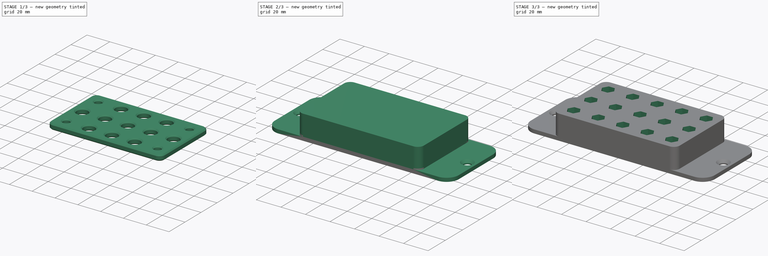
[diagram: build sequence overview — one tinted view per stage of 3, left to right]
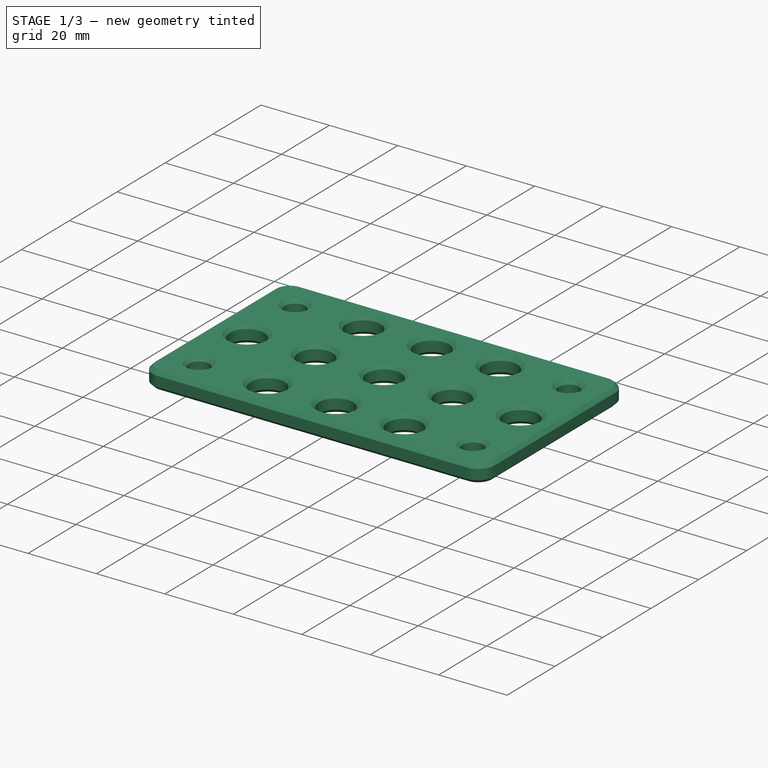
[diagram: stage 1 of 3 — iso view after this stage's code; geometry added in this stage tinted green]
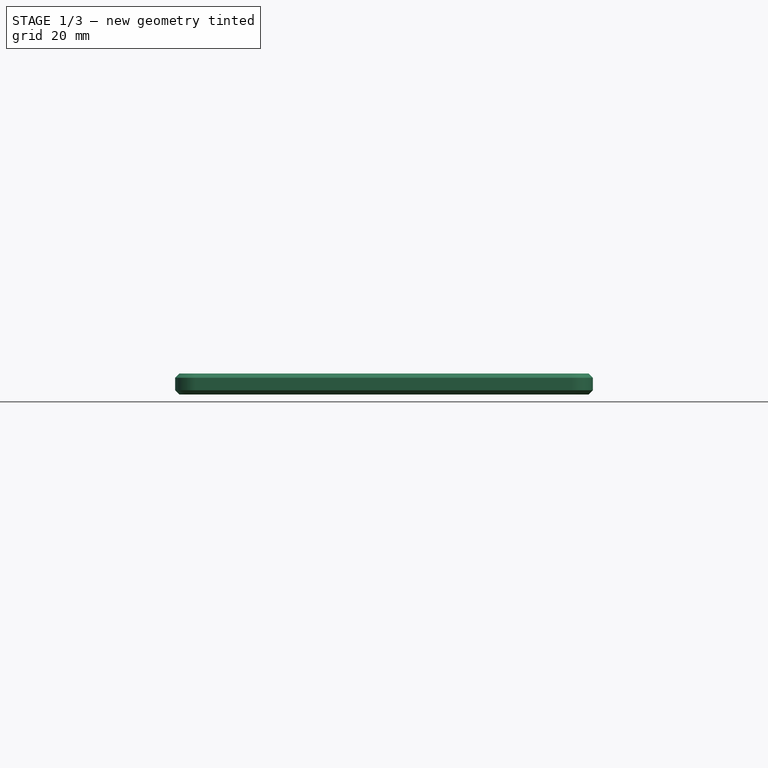
[diagram: stage 1 of 3 — front view after this stage's code; geometry added in this stage tinted green]
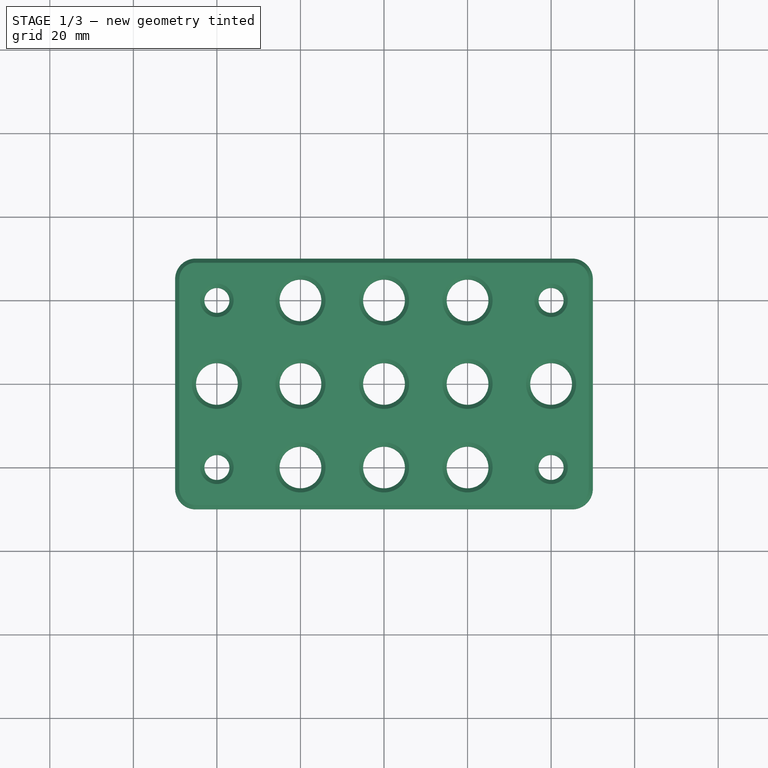
[diagram: stage 1 of 3 — top view after this stage's code; geometry added in this stage tinted green]
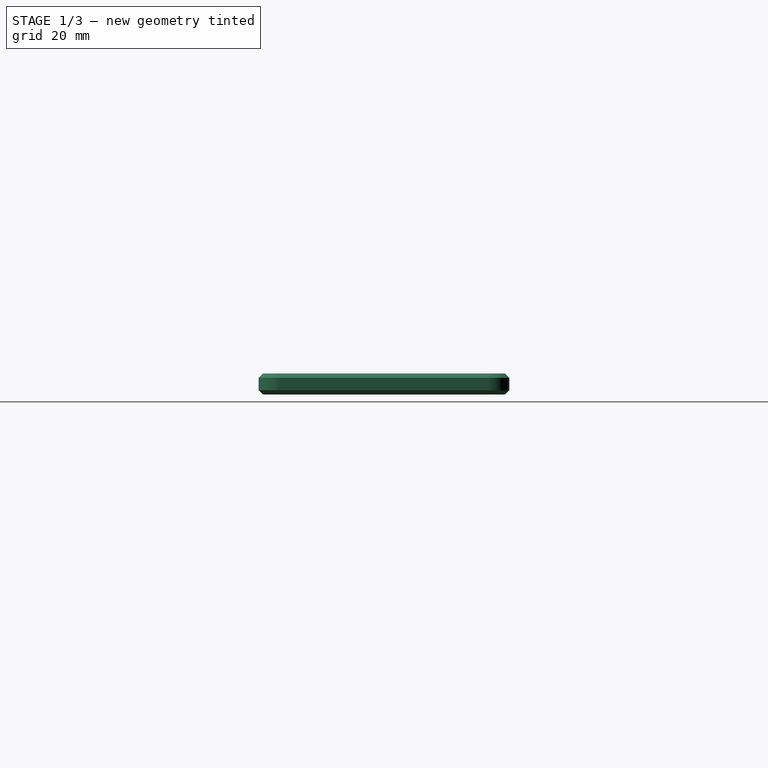
[diagram: stage 1 of 3 — right view after this stage's code; geometry added in this stage tinted green]
FCSTD DOCUMENT  (FreeCAD 0.21R33694 (Git))
Label: FM_mouthpiece_Tool
License: All rights reserved
LicenseURL: http://en.wikipedia.org/wiki/All_rights_reserved
objects: Sketcher::SketchObject×5, PartDesign::Pad×3, PartDesign::Chamfer×2, PartDesign::Pocket×2, PartDesign::Body×2
note: 21 computed .brp shape members not serialized (recipe doc carries the construction recipe); baked Part::Feature solids carry a one-line shape summary decoded from their .brp

FEATURE [PartDesign::Body] Body  label="base"
  Group = -> [Sketch,Pad,Chamfer,Sketch001,Pad001,Sketch002,Pocket,Sketch003,Pocket001]
  Origin = -> Origin
  Tip = -> Pocket001
FEATURE [Sketcher::SketchObject] Sketch004
  FullyConstrained = false
  MapMode = 5
  Support = -> [XY_Plane001]
  sketch-geometry (37):
    g0: Circle CenterX=-40 CenterY=20 CenterZ=0 NormalX=0 NormalY=0 NormalZ=1 AngleXU=0 Radius=3
    g1: Circle CenterX=-40 CenterY=0 CenterZ=0 NormalX=0 NormalY=0 NormalZ=1 AngleXU=0 Radius=5
    g2: Circle CenterX=-40 CenterY=-20 CenterZ=0 NormalX=0 NormalY=0 NormalZ=1 AngleXU=0 Radius=3
    g3: LineSegment StartX=-40 StartY=-10 StartZ=0 EndX=-40 EndY=-20 EndZ=0
    g4: LineSegment StartX=-40 StartY=-20 StartZ=0 EndX=-40 EndY=-30 EndZ=0
    g5: Circle CenterX=-20 CenterY=20 CenterZ=0 NormalX=0 NormalY=0 NormalZ=1 AngleXU=0 Radius=5
    g6: Circle CenterX=-20 CenterY=0 CenterZ=0 NormalX=0 NormalY=0 NormalZ=1 AngleXU=0 Radius=5
    g7: Circle CenterX=-20 CenterY=-20 CenterZ=0 NormalX=0 NormalY=0 NormalZ=1 AngleXU=0 Radius=5
    g8: LineSegment StartX=-20 StartY=-10 StartZ=0 EndX=-20 EndY=-20 EndZ=0
    g9: LineSegment StartX=-20 StartY=-20 StartZ=0 EndX=-20 EndY=-30 EndZ=0
    g10: LineSegment StartX=-40 StartY=20 StartZ=0 EndX=-20 EndY=20 EndZ=0
    g11: Circle CenterX=0 CenterY=20 CenterZ=0 NormalX=0 NormalY=0 NormalZ=1 AngleXU=0 Radius=5
    g12: Circle CenterX=0 CenterY=0 CenterZ=0 NormalX=0 NormalY=0 NormalZ=1 AngleXU=0 Radius=5
    g13: Circle CenterX=0 CenterY=-20 CenterZ=0 NormalX=0 NormalY=0 NormalZ=1 AngleXU=0 Radius=5
    g14: LineSegment StartX=0 StartY=-10 StartZ=0 EndX=0 EndY=-20 EndZ=0
    g15: LineSegment StartX=0 StartY=-20 StartZ=0 EndX=0 EndY=-30 EndZ=0
    g16: LineSegment StartX=-20 StartY=20 StartZ=0 EndX=0 EndY=20 EndZ=0
    g17: Circle CenterX=20 CenterY=20 CenterZ=0 NormalX=0 NormalY=0 NormalZ=1 AngleXU=0 Radius=5
    g18: Circle CenterX=20 CenterY=0 CenterZ=0 NormalX=0 NormalY=0 NormalZ=1 AngleXU=0 Radius=5
    g19: Circle CenterX=20 CenterY=-20 CenterZ=0 NormalX=0 NormalY=0 NormalZ=1 AngleXU=0 Radius=5
    g20: LineSegment StartX=20 StartY=-10 StartZ=0 EndX=20 EndY=-20 EndZ=0
    g21: LineSegment StartX=20 StartY=-20 StartZ=0 EndX=20 EndY=-30 EndZ=0
    g22: LineSegment StartX=0 StartY=20 StartZ=0 EndX=20 EndY=20 EndZ=0
    g23: Circle CenterX=40 CenterY=20 CenterZ=0 NormalX=0 NormalY=0 NormalZ=1 AngleXU=0 Radius=3
    g24: Circle CenterX=40 CenterY=0 CenterZ=0 NormalX=0 NormalY=0 NormalZ=1 AngleXU=0 Radius=5
    g25: Circle CenterX=40 CenterY=-20 CenterZ=0 NormalX=0 NormalY=0 NormalZ=1 AngleXU=0 Radius=3
    g26: LineSegment StartX=40 StartY=-10 StartZ=0 EndX=40 EndY=-20 EndZ=0
    g27: LineSegment StartX=40 StartY=-20 StartZ=0 EndX=40 EndY=-30 EndZ=0
    g28: LineSegment StartX=20 StartY=20 StartZ=0 EndX=40 EndY=20 EndZ=0
    g29: LineSegment StartX=-45.0989 StartY=30 StartZ=0 EndX=45.044 EndY=30 EndZ=0
    g30: LineSegment StartX=50 StartY=25.044 StartZ=0 EndX=50 EndY=-25.0419 EndZ=0
    g31: LineSegment StartX=45.0419 StartY=-30 StartZ=0 EndX=-45.086 EndY=-30 EndZ=0
    g32: LineSegment StartX=-50 StartY=-25.086 StartZ=0 EndX=-50 EndY=25.0989 EndZ=0
    g33: ArcOfCircle CenterX=45.0419 CenterY=-25.0419 CenterZ=0 NormalX=0 NormalY=0 NormalZ=1 AngleXU=0 Radius=4.95815 StartAngle=4.71239 EndAngle=6.28319
    g34: ArcOfCircle CenterX=-45.086 CenterY=-25.086 CenterZ=0 NormalX=0 NormalY=0 NormalZ=1 AngleXU=0 Radius=4.91403 StartAngle=3.14159 EndAngle=4.71239
    g35: ArcOfCircle CenterX=-45.0989 CenterY=25.0989 CenterZ=0 NormalX=0 NormalY=0 NormalZ=1 AngleXU=0 Radius=4.90112 StartAngle=1.5708 EndAngle=3.14159
    g36: ArcOfCircle CenterX=45.044 CenterY=25.044 CenterZ=0 NormalX=0 NormalY=0 NormalZ=1 AngleXU=0 Radius=4.95602 StartAngle=0 EndAngle=1.5708
  constraints (58):
    c: Coincident(g2,g3)
    c: Coincident(g2,g4)
    c: Equal(g3,g4)
    c: Coincident(g7,g8)
    c: Coincident(g7,g9)
    c: Equal(g8,g9)
    c: Coincident(g0,g10)
    c: Coincident(g5,g10)
    c: Distance(g10) = 20
    c: Angle(g10) = 0
    c: Coincident(g13,g14)
    c: Coincident(g13,g15)
    c: Equal(g14,g15)
    c: Coincident(g5,g16)
    c: Coincident(g11,g16)
    c: Equal(g10,g16)
    c: Parallel(g16,g10)
    c: Coincident(g19,g20)
    c: Coincident(g19,g21)
    c: Equal(g20,g21)
    c: Coincident(g11,g22)
    c: Coincident(g17,g22)
    c: Equal(g10,g22)
    c: Parallel(g22,g10)
    c: Coincident(g25,g26)
    c: Coincident(g25,g27)
    c: Equal(g26,g27)
    c: Coincident(g17,g28)
    c: Coincident(g23,g28)
    c: Equal(g10,g28)
    c: Parallel(g28,g10)
    c: Equal(g2,g0)
    c: Equal(g0,g25)
    c: Equal(g25,g23)
    c: Diameter(g23) = 6
    c: Equal(g5,g11)
    c: Equal(g11,g17)
    c: Equal(g17,g7)
    c: Equal(g7,g13)
    c: Equal(g13,g19)
    c: Equal(g19,g1)
    c: Equal(g1,g6)
    c: Equal(g6,g12)
    c: Equal(g12,g18)
    c: Equal(g18,g24)
    c: Diameter(g24) = 10
    c: Horizontal(g29)
    c: Horizontal(g31)
    c: Vertical(g30)
    c: Vertical(g32)
    c: Tangent(g30,g33) = 1.5708
    c: Tangent(g31,g33) = 1.5708
    c: Tangent(g31,g34) = 1.5708
    c: Tangent(g32,g34) = 1.5708
    c: Tangent(g29,g35) = 1.5708
    c: Tangent(g32,g35) = 1.5708
    c: Tangent(g30,g36) = 1.5708
    c: Tangent(g29,g36) = 1.5708
FEATURE [PartDesign::Pad] Pad002
  Direction = (0,0,1)
  Length = 5
  Length2 = 10
  Profile = -> Sketch004
  ReferenceAxis = -> Sketch004 [N_Axis]
  Type = 0
FEATURE [PartDesign::Chamfer] Chamfer001
  Angle = 45
  Base = -> Pad002 [Face25,Face24]
  BaseFeature = -> Pad002
  ChamferType = 0
  FlipDirection = false
  Size = 1
  Size2 = 1
  SupportTransform = false
  UseAllEdges = false
FEATURE [PartDesign::Body] Body001  label="cap"
  Group = -> [Sketch004,Pad002,Chamfer001]
  Origin = -> Origin001
  Tip = -> Chamfer001
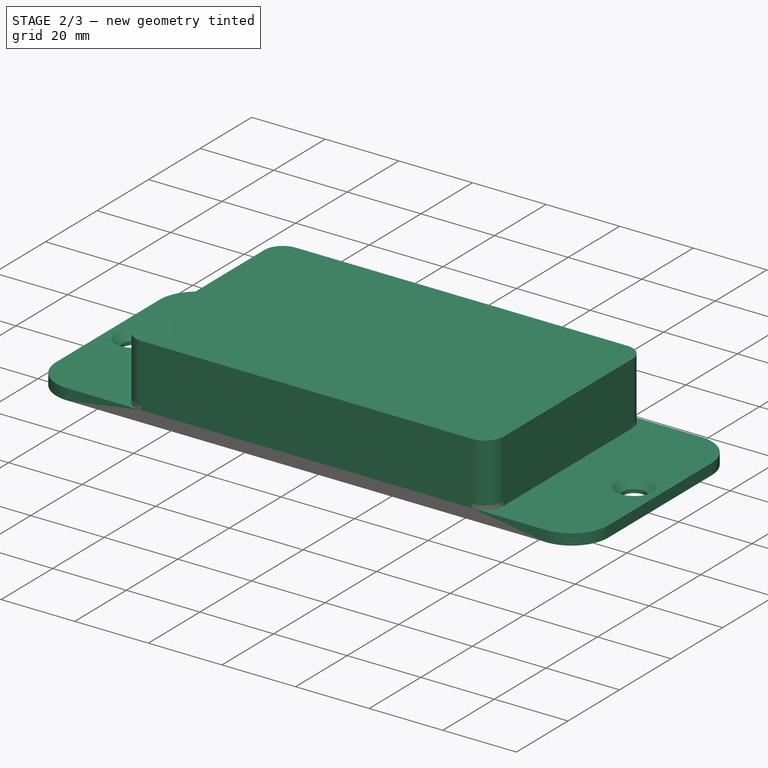
[diagram: stage 2 of 3 — iso view after this stage's code; geometry added in this stage tinted green]
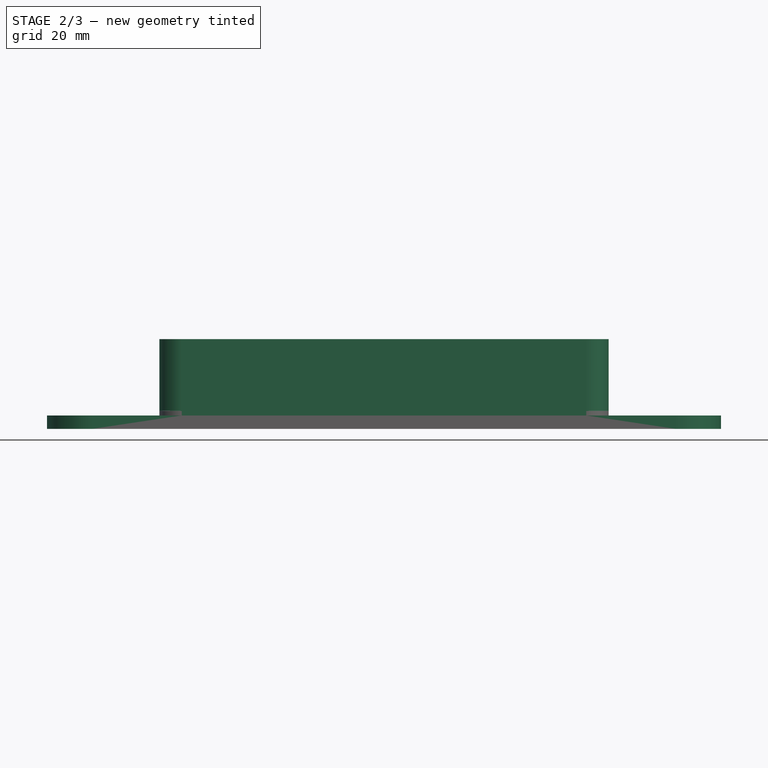
[diagram: stage 2 of 3 — front view after this stage's code; geometry added in this stage tinted green]
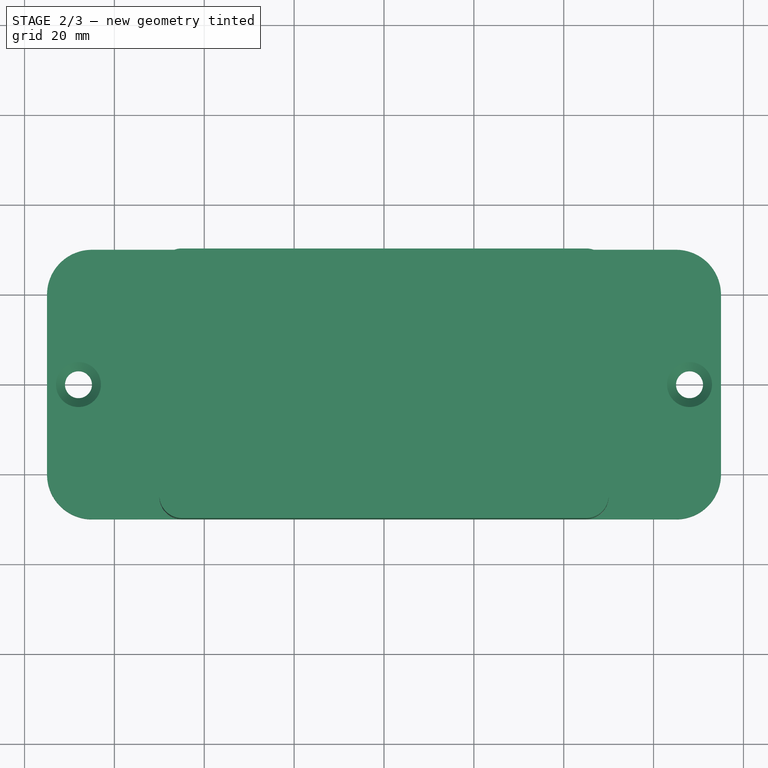
[diagram: stage 2 of 3 — top view after this stage's code; geometry added in this stage tinted green]
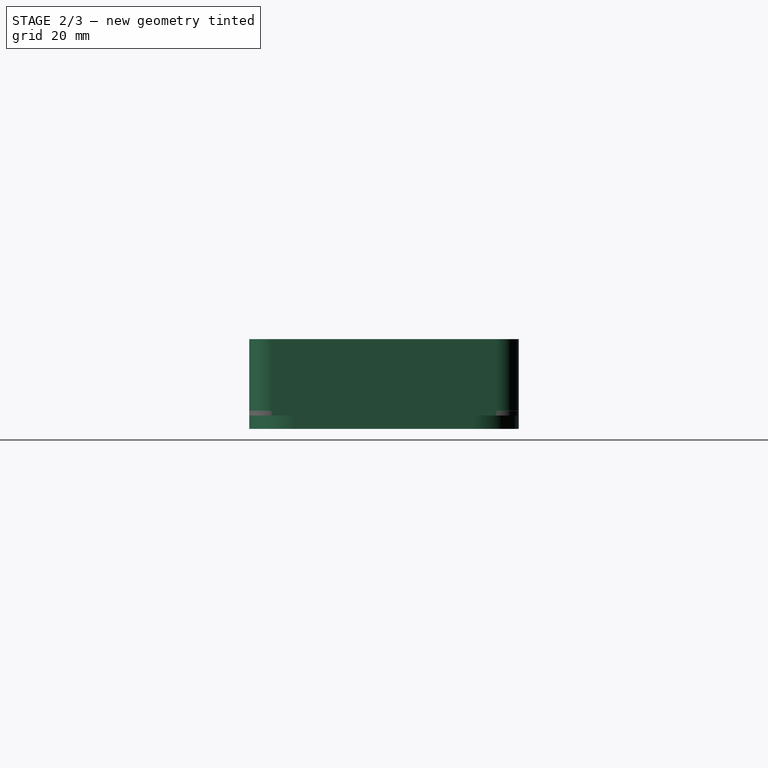
[diagram: stage 2 of 3 — right view after this stage's code; geometry added in this stage tinted green]
FEATURE [Sketcher::SketchObject] Sketch
  FullyConstrained = true
  MapMode = 5
  Support = -> [XY_Plane]
  sketch-geometry (14):
    g0: LineSegment StartX=-65 StartY=30 StartZ=0 EndX=65 EndY=30 EndZ=0
    g1: LineSegment StartX=75 StartY=20 StartZ=0 EndX=75 EndY=-20 EndZ=0
    g2: LineSegment StartX=65 StartY=-30 StartZ=0 EndX=-65 EndY=-30 EndZ=0
    g3: LineSegment StartX=-75 StartY=-20 StartZ=0 EndX=-75 EndY=20 EndZ=0
    g4: ArcOfCircle CenterX=-65 CenterY=20 CenterZ=0 NormalX=0 NormalY=0 NormalZ=1 AngleXU=0 Radius=10 StartAngle=1.5708 EndAngle=3.14159
    g5: GeomPoint X=-75 Y=30 Z=0
    g6: ArcOfCircle CenterX=-65 CenterY=-20 CenterZ=0 NormalX=0 NormalY=0 NormalZ=1 AngleXU=0 Radius=10 StartAngle=3.14159 EndAngle=4.71239
    g7: GeomPoint X=-75 Y=-30 Z=0
    g8: ArcOfCircle CenterX=65 CenterY=20 CenterZ=0 NormalX=0 NormalY=0 NormalZ=1 AngleXU=0 Radius=10 StartAngle=0 EndAngle=1.5708
    g9: GeomPoint X=75 Y=30 Z=0
    g10: ArcOfCircle CenterX=65 CenterY=-20 CenterZ=0 NormalX=0 NormalY=0 NormalZ=1 AngleXU=0 Radius=10 StartAngle=4.71239 EndAngle=6.28319
    g11: GeomPoint X=75 Y=-30 Z=0
    g12: Circle CenterX=-68 CenterY=0 CenterZ=0 NormalX=0 NormalY=0 NormalZ=1 AngleXU=0 Radius=3
    g13: Circle CenterX=68 CenterY=0 CenterZ=0 NormalX=0 NormalY=0 NormalZ=1 AngleXU=0 Radius=3
  constraints (31):
    c: Horizontal(g0)
    c: Vertical(g3)
    c: Symmetric(g11,g7,g-2)
    c: DistanceX(g7,g11) = 150
    c: DistanceY(g11,g9) = 60
    c: Symmetric(g11,g9,g-1)
    c: PointOnObject(g5,g0)
    c: PointOnObject(g5,g3)
    c: Tangent(g0,g4) = 1.5708
    c: Tangent(g3,g4) = 1.5708
    c: Radius(g4) = 10
    c: PointOnObject(g7,g3)
    c: PointOnObject(g7,g2)
    c: Tangent(g3,g6) = 1.5708
    c: Tangent(g2,g6) = 1.5708
    c: PointOnObject(g9,g0)
    c: PointOnObject(g9,g1)
    c: Tangent(g0,g8) = 1.5708
    c: Tangent(g1,g8) = 1.5708
    c: PointOnObject(g11,g1)
    c: PointOnObject(g11,g2)
    c: Tangent(g1,g10) = 1.5708
    c: Tangent(g2,g10) = 1.5708
    c: Radius(g8) = 10
    c: Radius(g10) = 10
    c: Radius(g6) = 10
    c: PointOnObject(g12,g-1)
    c: Radius(g12) = 3
    c: Radius(g13) = 3
    c: Symmetric(g13,g12,g-2)
    c: DistanceX(g12,g-1) = 68
FEATURE [PartDesign::Pad] Pad
  Direction = (1,1,1)
  Length = 3
  Length2 = 100
  Profile = -> Sketch
  Refine = true
  Type = 0
FEATURE [PartDesign::Chamfer] Chamfer
  Angle = 45
  Base = -> Pad [Edge30,Edge27]
  BaseFeature = -> Pad
  ChamferType = 0
  FlipDirection = false
  Refine = true
  Size = 2
  Size2 = 1
  SupportTransform = false
  UseAllEdges = false
FEATURE [Sketcher::SketchObject] Sketch001
  FullyConstrained = true
  MapMode = 5
  Support = -> [XY_Plane]
  sketch-geometry (12):
    g0: LineSegment StartX=-45 StartY=30 StartZ=0 EndX=45 EndY=30 EndZ=0
    g1: LineSegment StartX=50 StartY=25 StartZ=0 EndX=50 EndY=-25 EndZ=0
    g2: LineSegment StartX=45 StartY=-30 StartZ=0 EndX=-45 EndY=-30 EndZ=0
    g3: LineSegment StartX=-50 StartY=-25 StartZ=0 EndX=-50 EndY=25 EndZ=0
    g4: ArcOfCircle CenterX=-45 CenterY=25 CenterZ=0 NormalX=0 NormalY=0 NormalZ=1 AngleXU=0 Radius=5 StartAngle=1.5708 EndAngle=3.14159
    g5: GeomPoint X=-50 Y=30 Z=0
    g6: ArcOfCircle CenterX=45 CenterY=25 CenterZ=0 NormalX=0 NormalY=0 NormalZ=1 AngleXU=0 Radius=5 StartAngle=0 EndAngle=1.5708
    g7: GeomPoint X=50 Y=30 Z=0
    g8: ArcOfCircle CenterX=45 CenterY=-25 CenterZ=0 NormalX=0 NormalY=0 NormalZ=1 AngleXU=0 Radius=5 StartAngle=4.71239 EndAngle=6.28319
    g9: GeomPoint X=50 Y=-30 Z=0
    g10: ArcOfCircle CenterX=-45 CenterY=-25 CenterZ=0 NormalX=0 NormalY=0 NormalZ=1 AngleXU=0 Radius=5 StartAngle=3.14159 EndAngle=4.71239
    g11: GeomPoint X=-50 Y=-30 Z=0
  constraints (27):
    c: Horizontal(g0)
    c: Vertical(g3)
    c: Symmetric(g9,g7,g-1)
    c: DistanceY(g11,g5) = 60
    c: DistanceX(g5,g7) = 100
    c: Horizontal(g2)
    c: DistanceX(g11,g-1) = 50
    c: PointOnObject(g5,g0)
    c: PointOnObject(g5,g3)
    c: Tangent(g0,g4) = 1.5708
    c: Tangent(g3,g4) = 1.5708
    c: PointOnObject(g7,g0)
    c: PointOnObject(g7,g1)
    c: Tangent(g0,g6) = 1.5708
    c: Tangent(g1,g6) = 1.5708
    c: PointOnObject(g9,g1)
    c: PointOnObject(g9,g2)
    c: Tangent(g1,g8) = 1.5708
    c: Tangent(g2,g8) = 1.5708
    c: PointOnObject(g11,g2)
    c: PointOnObject(g11,g3)
    c: Tangent(g2,g10) = 1.5708
    c: Tangent(g3,g10) = 1.5708
    c: Radius(g10) = 5
    c: Radius(g4) = 5
    c: Radius(g6) = 5
    c: Radius(g8) = 5
FEATURE [PartDesign::Pad] Pad001
  BaseFeature = -> Chamfer
  Direction = (1,1,1)
  Length = 20
  Length2 = 100
  Profile = -> Sketch001
  Refine = true
  Type = 0
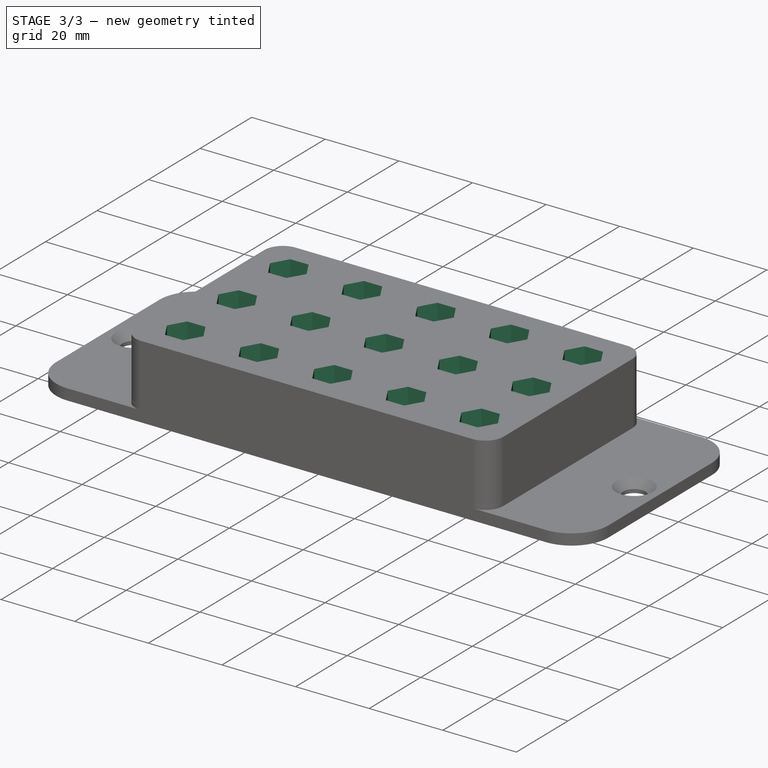
[diagram: stage 3 of 3 — iso view after this stage's code; geometry added in this stage tinted green]
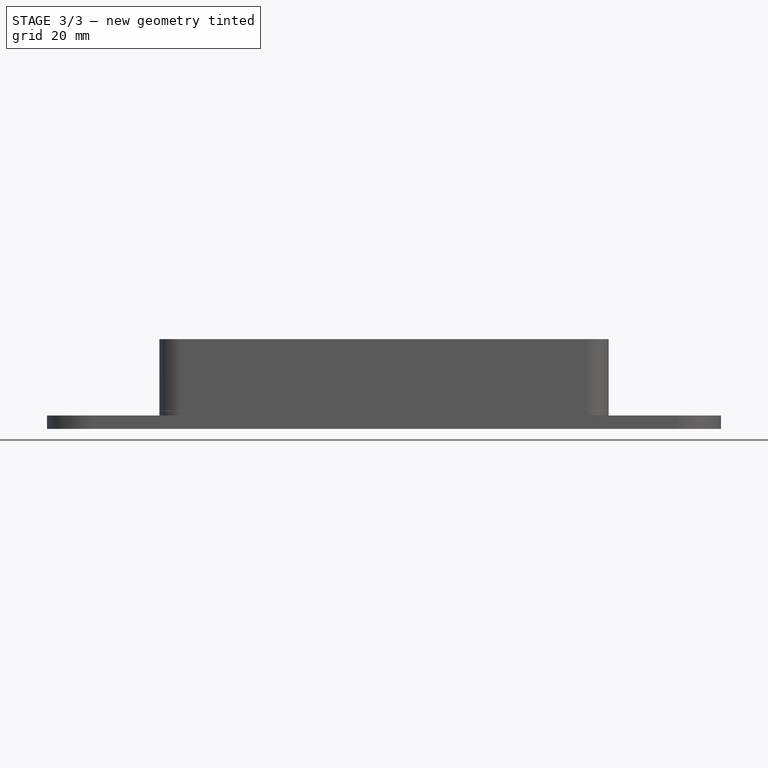
[diagram: stage 3 of 3 — front view after this stage's code; geometry added in this stage tinted green]
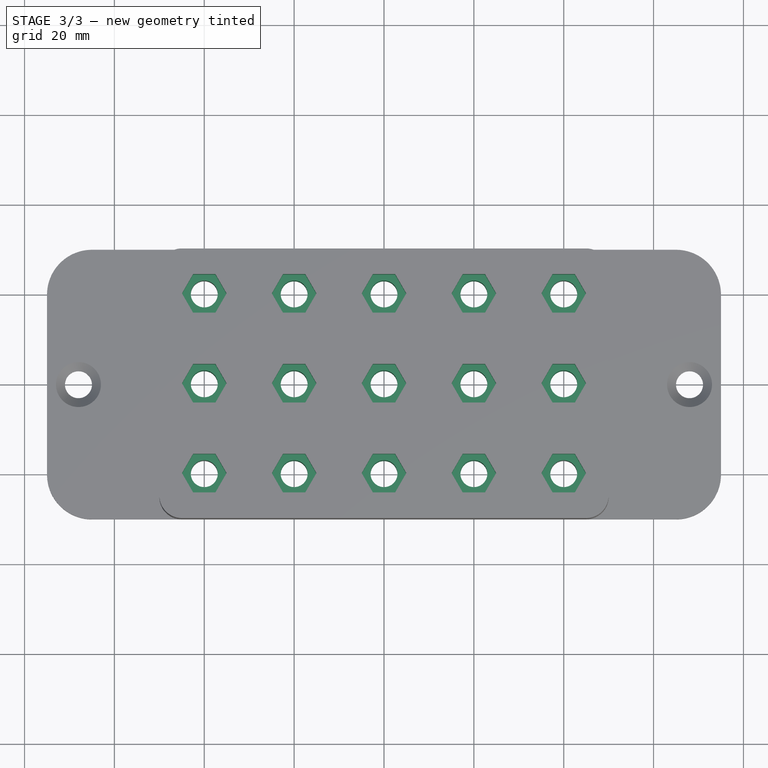
[diagram: stage 3 of 3 — top view after this stage's code; geometry added in this stage tinted green]
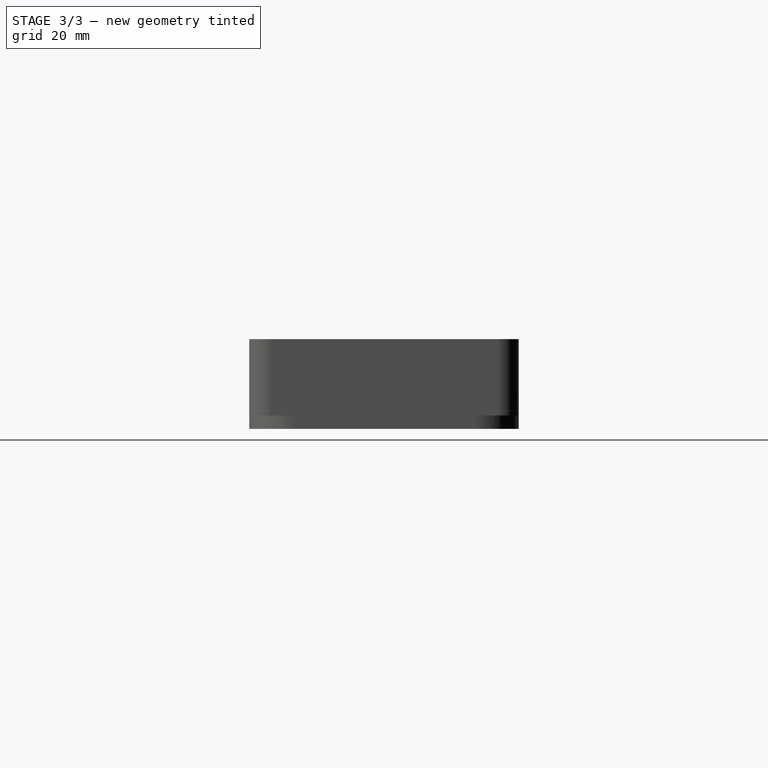
[diagram: stage 3 of 3 — right view after this stage's code; geometry added in this stage tinted green]
FEATURE [Sketcher::SketchObject] Sketch002
  FullyConstrained = false
  MapMode = 5
  Placement = pos=(0,0,20) rot=(0,0,1;0rad)
  Support = -> [Pad001]
  sketch-geometry (109):
    g0: LineSegment StartX=-37.5174 StartY=15.7 StartZ=0 EndX=-35.0348 EndY=20 EndZ=0
    g1: LineSegment StartX=-35.0348 StartY=20 StartZ=0 EndX=-37.5174 EndY=24.3 EndZ=0
    g2: LineSegment StartX=-37.5174 StartY=24.3 StartZ=0 EndX=-42.4826 EndY=24.3 EndZ=0
    g3: LineSegment StartX=-42.4826 StartY=24.3 StartZ=0 EndX=-44.9652 EndY=20 EndZ=0
    g4: LineSegment StartX=-44.9652 StartY=20 StartZ=0 EndX=-42.4826 EndY=15.7 EndZ=0
    g5: LineSegment StartX=-42.4826 StartY=15.7 StartZ=0 EndX=-37.5174 EndY=15.7 EndZ=0
    g6: Circle CenterX=-40 CenterY=20 CenterZ=0 NormalX=0 NormalY=0 NormalZ=1 AngleXU=0 Radius=4.96521
    g7: LineSegment StartX=-37.5174 StartY=-4.3 StartZ=0 EndX=-35.0348 EndY=0 EndZ=0
    g8: LineSegment StartX=-35.0348 StartY=2e-16 StartZ=0 EndX=-37.5174 EndY=4.3 EndZ=0
    g9: LineSegment StartX=-37.5174 StartY=4.3 StartZ=0 EndX=-42.4826 EndY=4.3 EndZ=0
    g10: LineSegment StartX=-42.4826 StartY=4.3 StartZ=0 EndX=-44.9652 EndY=0 EndZ=0
    g11: LineSegment StartX=-44.9652 StartY=0 StartZ=0 EndX=-42.4826 EndY=-4.3 EndZ=0
    g12: LineSegment StartX=-42.4826 StartY=-4.3 StartZ=0 EndX=-37.5174 EndY=-4.3 EndZ=0
    g13: Circle CenterX=-40 CenterY=0 CenterZ=0 NormalX=0 NormalY=0 NormalZ=1 AngleXU=0 Radius=4.96521
    g14: LineSegment StartX=-37.5174 StartY=-24.3 StartZ=0 EndX=-35.0348 EndY=-20 EndZ=0
    g15: LineSegment StartX=-35.0348 StartY=-20 StartZ=0 EndX=-37.5174 EndY=-15.7 EndZ=0
    g16: LineSegment StartX=-37.5174 StartY=-15.7 StartZ=0 EndX=-42.4826 EndY=-15.7 EndZ=0
    g17: LineSegment StartX=-42.4826 StartY=-15.7 StartZ=0 EndX=-44.9652 EndY=-20 EndZ=0
    g18: LineSegment StartX=-44.9652 StartY=-20 StartZ=0 EndX=-42.4826 EndY=-24.3 EndZ=0
    g19: LineSegment StartX=-42.4826 StartY=-24.3 StartZ=0 EndX=-37.5174 EndY=-24.3 EndZ=0
    g20: Circle CenterX=-40 CenterY=-20 CenterZ=0 NormalX=0 NormalY=0 NormalZ=1 AngleXU=0 Radius=4.96521
    g21: LineSegment StartX=-17.5174 StartY=15.7 StartZ=0 EndX=-15.0348 EndY=20 EndZ=0
    g22: LineSegment StartX=-15.0348 StartY=20 StartZ=0 EndX=-17.5174 EndY=24.3 EndZ=0
    g23: LineSegment StartX=-17.5174 StartY=24.3 StartZ=0 EndX=-22.4826 EndY=24.3 EndZ=0
    g24: LineSegment StartX=-22.4826 StartY=24.3 StartZ=0 EndX=-24.9652 EndY=20 EndZ=0
    g25: LineSegment StartX=-24.9652 StartY=20 StartZ=0 EndX=-22.4826 EndY=15.7 EndZ=0
    g26: LineSegment StartX=-22.4826 StartY=15.7 StartZ=0 EndX=-17.5174 EndY=15.7 EndZ=0
    g27: Circle CenterX=-20 CenterY=20 CenterZ=0 NormalX=0 NormalY=0 NormalZ=1 AngleXU=0 Radius=4.96521
    g28: LineSegment StartX=-17.5174 StartY=-4.3 StartZ=0 EndX=-15.0348 EndY=0 EndZ=0
    g29: LineSegment StartX=-15.0348 StartY=0 StartZ=0 EndX=-17.5174 EndY=4.3 EndZ=0
    g30: LineSegment StartX=-17.5174 StartY=4.3 StartZ=0 EndX=-22.4826 EndY=4.3 EndZ=0
    g31: LineSegment StartX=-22.4826 StartY=4.3 StartZ=0 EndX=-24.9652 EndY=0 EndZ=0
    g32: LineSegment StartX=-24.9652 StartY=0 StartZ=0 EndX=-22.4826 EndY=-4.3 EndZ=0
    g33: LineSegment StartX=-22.4826 StartY=-4.3 StartZ=0 EndX=-17.5174 EndY=-4.3 EndZ=0
    g34: Circle CenterX=-20 CenterY=0 CenterZ=0 NormalX=0 NormalY=0 NormalZ=1 AngleXU=0 Radius=4.96521
    g35: LineSegment StartX=-17.5174 StartY=-24.3 StartZ=0 EndX=-15.0348 EndY=-20 EndZ=0
    g36: LineSegment StartX=-15.0348 StartY=-20 StartZ=0 EndX=-17.5174 EndY=-15.7 EndZ=0
    g37: LineSegment StartX=-17.5174 StartY=-15.7 StartZ=0 EndX=-22.4826 EndY=-15.7 EndZ=0
    g38: LineSegment StartX=-22.4826 StartY=-15.7 StartZ=0 EndX=-24.9652 EndY=-20 EndZ=0
    g39: LineSegment StartX=-24.9652 StartY=-20 StartZ=0 EndX=-22.4826 EndY=-24.3 EndZ=0
    g40: LineSegment StartX=-22.4826 StartY=-24.3 StartZ=0 EndX=-17.5174 EndY=-24.3 EndZ=0
    g41: Circle CenterX=-20 CenterY=-20 CenterZ=0 NormalX=0 NormalY=0 NormalZ=1 AngleXU=0 Radius=4.96521
    g42: LineSegment StartX=-37.5174 StartY=15.7 StartZ=0 EndX=-17.5174 EndY=15.7 EndZ=0
    g43: LineSegment StartX=2.48261 StartY=15.7 StartZ=0 EndX=4.96521 EndY=20 EndZ=0
    g44: LineSegment StartX=4.96521 StartY=20 StartZ=0 EndX=2.48261 EndY=24.3 EndZ=0
    g45: LineSegment StartX=2.48261 StartY=24.3 StartZ=0 EndX=-2.48261 EndY=24.3 EndZ=0
    g46: LineSegment StartX=-2.48261 StartY=24.3 StartZ=0 EndX=-4.96521 EndY=20 EndZ=0
    g47: LineSegment StartX=-4.96521 StartY=20 StartZ=0 EndX=-2.48261 EndY=15.7 EndZ=0
    g48: LineSegment StartX=-2.48261 StartY=15.7 StartZ=0 EndX=2.48261 EndY=15.7 EndZ=0
    g49: Circle CenterX=0 CenterY=20 CenterZ=0 NormalX=0 NormalY=0 NormalZ=1 AngleXU=0 Radius=4.96521
    g50: LineSegment StartX=2.48261 StartY=-4.3 StartZ=0 EndX=4.96521 EndY=0 EndZ=0
    g51: LineSegment StartX=4.96521 StartY=0 StartZ=0 EndX=2.48261 EndY=4.3 EndZ=0
    g52: LineSegment StartX=2.48261 StartY=4.3 StartZ=0 EndX=-2.48261 EndY=4.3 EndZ=0
    g53: LineSegment StartX=-2.48261 StartY=4.3 StartZ=0 EndX=-4.96521 EndY=0 EndZ=0
    g54: LineSegment StartX=-4.96521 StartY=0 StartZ=0 EndX=-2.48261 EndY=-4.3 EndZ=0
    g55: LineSegment StartX=-2.48261 StartY=-4.3 StartZ=0 EndX=2.48261 EndY=-4.3 EndZ=0
    g56: Circle CenterX=0 CenterY=0 CenterZ=0 NormalX=0 NormalY=0 NormalZ=1 AngleXU=0 Radius=4.96521
    g57: LineSegment StartX=2.48261 StartY=-24.3 StartZ=0 EndX=4.96521 EndY=-20 EndZ=0
    g58: LineSegment StartX=4.96521 StartY=-20 StartZ=0 EndX=2.48261 EndY=-15.7 EndZ=0
    g59: LineSegment StartX=2.48261 StartY=-15.7 StartZ=0 EndX=-2.48261 EndY=-15.7 EndZ=0
    g60: LineSegment StartX=-2.48261 StartY=-15.7 StartZ=0 EndX=-4.96521 EndY=-20 EndZ=0
    g61: LineSegment StartX=-4.96521 StartY=-20 StartZ=0 EndX=-2.48261 EndY=-24.3 EndZ=0
    g62: LineSegment StartX=-2.48261 StartY=-24.3 StartZ=0 EndX=2.48261 EndY=-24.3 EndZ=0
    g63: Circle CenterX=0 CenterY=-20 CenterZ=0 NormalX=0 NormalY=0 NormalZ=1 AngleXU=0 Radius=4.96521
    g64: LineSegment StartX=-17.5174 StartY=15.7 StartZ=0 EndX=2.48261 EndY=15.7 EndZ=0
    g65: LineSegment StartX=22.4826 StartY=15.7 StartZ=0 EndX=24.9652 EndY=20 EndZ=0
    g66: LineSegment StartX=24.9652 StartY=20 StartZ=0 EndX=22.4826 EndY=24.3 EndZ=0
    g67: LineSegment StartX=22.4826 StartY=24.3 StartZ=0 EndX=17.5174 EndY=24.3 EndZ=0
    g68: LineSegment StartX=17.5174 StartY=24.3 StartZ=0 EndX=15.0348 EndY=20 EndZ=0
    g69: LineSegment StartX=15.0348 StartY=20 StartZ=0 EndX=17.5174 EndY=15.7 EndZ=0
    g70: LineSegment StartX=17.5174 StartY=15.7 StartZ=0 EndX=22.4826 EndY=15.7 EndZ=0
    g71: Circle CenterX=20 CenterY=20 CenterZ=0 NormalX=0 NormalY=0 NormalZ=1 AngleXU=0 Radius=4.96521
    g72: LineSegment StartX=22.4826 StartY=-4.3 StartZ=0 EndX=24.9652 EndY=0 EndZ=0
    g73: LineSegment StartX=24.9652 StartY=0 StartZ=0 EndX=22.4826 EndY=4.3 EndZ=0
    g74: LineSegment StartX=22.4826 StartY=4.3 StartZ=0 EndX=17.5174 EndY=4.3 EndZ=0
    g75: LineSegment StartX=17.5174 StartY=4.3 StartZ=0 EndX=15.0348 EndY=0 EndZ=0
    g76: LineSegment StartX=15.0348 StartY=0 StartZ=0 EndX=17.5174 EndY=-4.3 EndZ=0
    g77: LineSegment StartX=17.5174 StartY=-4.3 StartZ=0 EndX=22.4826 EndY=-4.3 EndZ=0
    g78: Circle CenterX=20 CenterY=0 CenterZ=0 NormalX=0 NormalY=0 NormalZ=1 AngleXU=0 Radius=4.96521
    g79: LineSegment StartX=22.4826 StartY=-24.3 StartZ=0 EndX=24.9652 EndY=-20 EndZ=0
    g80: LineSegment StartX=24.9652 StartY=-20 StartZ=0 EndX=22.4826 EndY=-15.7 EndZ=0
    g81: LineSegment StartX=22.4826 StartY=-15.7 StartZ=0 EndX=17.5174 EndY=-15.7 EndZ=0
    g82: LineSegment StartX=17.5174 StartY=-15.7 StartZ=0 EndX=15.0348 EndY=-20 EndZ=0
    g83: LineSegment StartX=15.0348 StartY=-20 StartZ=0 EndX=17.5174 EndY=-24.3 EndZ=0
    g84: LineSegment StartX=17.5174 StartY=-24.3 StartZ=0 EndX=22.4826 EndY=-24.3 EndZ=0
    g85: Circle CenterX=20 CenterY=-20 CenterZ=0 NormalX=0 NormalY=0 NormalZ=1 AngleXU=0 Radius=4.96521
    g86: LineSegment StartX=2.48261 StartY=15.7 StartZ=0 EndX=22.4826 EndY=15.7 EndZ=0
    g87: LineSegment StartX=42.4826 StartY=15.7 StartZ=0 EndX=44.9652 EndY=20 EndZ=0
    g88: LineSegment StartX=44.9652 StartY=20 StartZ=0 EndX=42.4826 EndY=24.3 EndZ=0
    g89: LineSegment StartX=42.4826 StartY=24.3 StartZ=0 EndX=37.5174 EndY=24.3 EndZ=0
    g90: LineSegment StartX=37.5174 StartY=24.3 StartZ=0 EndX=35.0348 EndY=20 EndZ=0
    g91: LineSegment StartX=35.0348 StartY=20 StartZ=0 EndX=37.5174 EndY=15.7 EndZ=0
    g92: LineSegment StartX=37.5174 StartY=15.7 StartZ=0 EndX=42.4826 EndY=15.7 EndZ=0
    g93: Circle CenterX=40 CenterY=20 CenterZ=0 NormalX=0 NormalY=0 NormalZ=1 AngleXU=0 Radius=4.96521
    g94: LineSegment StartX=42.4826 StartY=-4.3 StartZ=0 EndX=44.9652 EndY=0 EndZ=0
    g95: LineSegment StartX=44.9652 StartY=2e-16 StartZ=0 EndX=42.4826 EndY=4.3 EndZ=0
    g96: LineSegment StartX=42.4826 StartY=4.3 StartZ=0 EndX=37.5174 EndY=4.3 EndZ=0
    g97: LineSegment StartX=37.5174 StartY=4.3 StartZ=0 EndX=35.0348 EndY=0 EndZ=0
    g98: LineSegment StartX=35.0348 StartY=0 StartZ=0 EndX=37.5174 EndY=-4.3 EndZ=0
    g99: LineSegment StartX=37.5174 StartY=-4.3 StartZ=0 EndX=42.4826 EndY=-4.3 EndZ=0
    g100: Circle CenterX=40 CenterY=0 CenterZ=0 NormalX=0 NormalY=0 NormalZ=1 AngleXU=0 Radius=4.96521
    g101: LineSegment StartX=42.4826 StartY=-24.3 StartZ=0 EndX=44.9652 EndY=-20 EndZ=0
    g102: LineSegment StartX=44.9652 StartY=-20 StartZ=0 EndX=42.4826 EndY=-15.7 EndZ=0
    g103: LineSegment StartX=42.4826 StartY=-15.7 StartZ=0 EndX=37.5174 EndY=-15.7 EndZ=0
    g104: LineSegment StartX=37.5174 StartY=-15.7 StartZ=0 EndX=35.0348 EndY=-20 EndZ=0
    g105: LineSegment StartX=35.0348 StartY=-20 StartZ=0 EndX=37.5174 EndY=-24.3 EndZ=0
    g106: LineSegment StartX=37.5174 StartY=-24.3 StartZ=0 EndX=42.4826 EndY=-24.3 EndZ=0
    g107: Circle CenterX=40 CenterY=-20 CenterZ=0 NormalX=0 NormalY=0 NormalZ=1 AngleXU=0 Radius=4.96521
    g108: LineSegment StartX=22.4826 StartY=15.7 StartZ=0 EndX=42.4826 EndY=15.7 EndZ=0
  constraints (254):
    c: Coincident(g0,g1)
    c: Coincident(g1,g2)
    c: Coincident(g2,g3)
    c: Coincident(g3,g4)
    c: Coincident(g4,g5)
    c: Coincident(g5,g0)
    c: Equal(g0, g1-g5) x5
    c: PointOnObject(g0,g6)
    c: PointOnObject(g1,g6)
    c: PointOnObject(g2,g6)
    c: PointOnObject(g3,g6)
    c: PointOnObject(g4,g6)
    c: PointOnObject(g5,g6)
    c: Horizontal(g5)
    c: DistanceY(g0,g1) = 8.6
    c: Coincident(g7,g8)
    c: Coincident(g8,g9)
    c: Coincident(g9,g10)
    c: Coincident(g10,g11)
    c: Coincident(g11,g12)
    c: Coincident(g12,g7)
    c: Equal(g7, g8-g12) x5
    c: PointOnObject(g7,g13)
    c: PointOnObject(g8,g13)
    c: PointOnObject(g9,g13)
    c: PointOnObject(g10,g13)
    c: PointOnObject(g11,g13)
    c: PointOnObject(g12,g13)
    c: Horizontal(g12)
    c: DistanceY(g7,g8) = 8.6
    c: PointOnObject(g13,g-1)
    c: Coincident(g14,g15)
    c: Coincident(g15,g16)
    c: Coincident(g16,g17)
    c: Coincident(g17,g18)
    c: Coincident(g18,g19)
    c: Coincident(g19,g14)
    c: Equal(g14, g15-g19) x5
    c: PointOnObject(g14,g20)
    c: PointOnObject(g15,g20)
    c: PointOnObject(g16,g20)
    c: PointOnObject(g17,g20)
    c: PointOnObject(g18,g20)
    c: PointOnObject(g19,g20)
    c: Horizontal(g19)
    c: DistanceY(g14,g15) = 8.6
    c: Symmetric(g6,g20,g-1)
    c: DistanceY(g20,g6) = 40
    c: Vertical(g6,g13)
    c: DistanceX(g13,g-1) = 40
    c: Coincident(g21,g22)
    c: Coincident(g22,g23)
    c: Coincident(g23,g24)
    c: Coincident(g24,g25)
    c: Coincident(g25,g26)
    c: Coincident(g26,g21)
    c: Equal(g21, g22-g26) x5
    c: PointOnObject(g21,g27)
    c: PointOnObject(g22,g27)
    c: PointOnObject(g23,g27)
    c: PointOnObject(g24,g27)
    c: PointOnObject(g25,g27)
    c: PointOnObject(g26,g27)
    c: Horizontal(g26)
    c: DistanceY(g21,g22) = 8.6
    c: Coincident(g28,g29)
    c: Coincident(g29,g30)
    c: Coincident(g30,g31)
    c: Coincident(g31,g32)
    c: Coincident(g32,g33)
    c: Coincident(g33,g28)
    c: Equal(g28, g29-g33) x5
    c: PointOnObject(g28,g34)
    c: PointOnObject(g29,g34)
    c: PointOnObject(g30,g34)
    c: PointOnObject(g31,g34)
    c: PointOnObject(g32,g34)
    c: PointOnObject(g33,g34)
    c: Horizontal(g33)
    c: DistanceY(g28,g29) = 8.6
    c: Coincident(g35,g36)
    c: Coincident(g36,g37)
    c: Coincident(g37,g38)
    c: Coincident(g38,g39)
    c: Coincident(g39,g40)
    c: Coincident(g40,g35)
    c: Equal(g35, g36-g40) x5
    c: PointOnObject(g35,g41)
    c: PointOnObject(g36,g41)
    c: PointOnObject(g37,g41)
    c: PointOnObject(g38,g41)
    c: PointOnObject(g39,g41)
    c: PointOnObject(g40,g41)
    c: Horizontal(g40)
    c: DistanceY(g35,g36) = 8.6
    c: DistanceY(g41,g27) = 40
    c: Vertical(g27,g34)
    c: Coincident(g0,g42)
    c: Coincident(g21,g42)
    c: Distance(g42) = 20
    c: Angle(g42) = 0
    c: Coincident(g43,g44)
    c: Coincident(g44,g45)
    c: Coincident(g45,g46)
    c: Coincident(g46,g47)
    c: Coincident(g47,g48)
    c: Coincident(g48,g43)
    c: Equal(g43, g44-g48) x5
    c: PointOnObject(g43,g49)
    c: PointOnObject(g44,g49)
    c: PointOnObject(g45,g49)
    c: PointOnObject(g46,g49)
    c: PointOnObject(g47,g49)
    c: PointOnObject(g48,g49)
    c: Horizontal(g48)
    c: DistanceY(g43,g44) = 8.6
    c: Coincident(g50,g51)
    c: Coincident(g51,g52)
    c: Coincident(g52,g53)
    c: Coincident(g53,g54)
    c: Coincident(g54,g55)
    c: Coincident(g55,g50)
    c: Equal(g50, g51-g55) x5
    c: PointOnObject(g50,g56)
    c: PointOnObject(g51,g56)
    c: PointOnObject(g52,g56)
    c: PointOnObject(g53,g56)
    c: PointOnObject(g54,g56)
    c: PointOnObject(g55,g56)
    c: Horizontal(g55)
    c: DistanceY(g50,g51) = 8.6
    c: Coincident(g57,g58)
    c: Coincident(g58,g59)
    c: Coincident(g59,g60)
    c: Coincident(g60,g61)
    c: Coincident(g61,g62)
    c: Coincident(g62,g57)
    c: Equal(g57, g58-g62) x5
    c: PointOnObject(g57,g63)
    c: PointOnObject(g58,g63)
    c: PointOnObject(g59,g63)
    c: PointOnObject(g60,g63)
    c: PointOnObject(g61,g63)
    c: PointOnObject(g62,g63)
    c: Horizontal(g62)
    c: DistanceY(g57,g58) = 8.6
    c: DistanceY(g63,g49) = 40
    c: Vertical(g49,g56)
    c: Coincident(g21,g64)
    c: Coincident(g43,g64)
    c: Equal(g42,g64)
    c: Parallel(g64,g42)
    c: Coincident(g65,g66)
    c: Coincident(g66,g67)
    c: Coincident(g67,g68)
    c: Coincident(g68,g69)
    c: Coincident(g69,g70)
    c: Coincident(g70,g65)
    c: Equal(g65, g66-g70) x5
    c: PointOnObject(g65,g71)
    c: PointOnObject(g66,g71)
    c: PointOnObject(g67,g71)
    c: PointOnObject(g68,g71)
    c: PointOnObject(g69,g71)
    c: PointOnObject(g70,g71)
    c: Horizontal(g70)
    c: DistanceY(g65,g66) = 8.6
    c: Coincident(g72,g73)
    c: Coincident(g73,g74)
    c: Coincident(g74,g75)
    c: Coincident(g75,g76)
    c: Coincident(g76,g77)
    c: Coincident(g77,g72)
    c: Equal(g72, g73-g77) x5
    c: PointOnObject(g72,g78)
    c: PointOnObject(g73,g78)
    c: PointOnObject(g74,g78)
    c: PointOnObject(g75,g78)
    c: PointOnObject(g76,g78)
    c: PointOnObject(g77,g78)
    c: Horizontal(g77)
    c: DistanceY(g72,g73) = 8.6
    c: Coincident(g79,g80)
    c: Coincident(g80,g81)
    c: Coincident(g81,g82)
    c: Coincident(g82,g83)
    c: Coincident(g83,g84)
    c: Coincident(g84,g79)
    c: Equal(g79, g80-g84) x5
    c: PointOnObject(g79,g85)
    c: PointOnObject(g80,g85)
    c: PointOnObject(g81,g85)
    c: PointOnObject(g82,g85)
    c: PointOnObject(g83,g85)
    c: PointOnObject(g84,g85)
    c: Horizontal(g84)
    c: DistanceY(g79,g80) = 8.6
    c: DistanceY(g85,g71) = 40
    c: Vertical(g71,g78)
    c: Coincident(g43,g86)
    c: Coincident(g65,g86)
    c: Equal(g42,g86)
    c: Parallel(g86,g42)
    c: Coincident(g87,g88)
    c: Coincident(g88,g89)
    c: Coincident(g89,g90)
    c: Coincident(g90,g91)
    c: Coincident(g91,g92)
    c: Coincident(g92,g87)
    c: Equal(g87, g88-g92) x5
    c: PointOnObject(g87,g93)
    c: PointOnObject(g88,g93)
    c: PointOnObject(g89,g93)
    c: PointOnObject(g90,g93)
    c: PointOnObject(g91,g93)
    c: PointOnObject(g92,g93)
    c: Horizontal(g92)
    c: DistanceY(g87,g88) = 8.6
    c: Coincident(g94,g95)
    c: Coincident(g95,g96)
    c: Coincident(g96,g97)
    c: Coincident(g97,g98)
    c: Coincident(g98,g99)
    c: Coincident(g99,g94)
    c: Equal(g94, g95-g99) x5
    c: PointOnObject(g94,g100)
    c: PointOnObject(g95,g100)
    c: PointOnObject(g96,g100)
    c: PointOnObject(g97,g100)
    c: PointOnObject(g98,g100)
    c: PointOnObject(g99,g100)
    c: Horizontal(g99)
    c: DistanceY(g94,g95) = 8.6
    c: Coincident(g101,g102)
    c: Coincident(g102,g103)
    c: Coincident(g103,g104)
    c: Coincident(g104,g105)
    c: Coincident(g105,g106)
    c: Coincident(g106,g101)
    c: Equal(g101, g102-g106) x5
    c: PointOnObject(g101,g107)
    c: PointOnObject(g102,g107)
    c: PointOnObject(g103,g107)
    c: PointOnObject(g104,g107)
    c: PointOnObject(g105,g107)
    c: PointOnObject(g106,g107)
    c: Horizontal(g106)
    c: DistanceY(g101,g102) = 8.6
    c: DistanceY(g107,g93) = 40
    c: Vertical(g93,g100)
    c: Coincident(g65,g108)
    c: Coincident(g87,g108)
    c: Equal(g42,g108)
    c: Parallel(g108,g42)
FEATURE [PartDesign::Pocket] Pocket
  BaseFeature = -> Pad001
  Direction = (1,1,1)
  Length = 7
  Length2 = 100
  Profile = -> Sketch002
  Refine = true
  Type = 0
FEATURE [Sketcher::SketchObject] Sketch003
  FullyConstrained = false
  MapMode = 5
  Support = -> [XY_Plane]
  sketch-geometry (29):
    g0: Circle CenterX=-40 CenterY=20 CenterZ=0 NormalX=0 NormalY=0 NormalZ=1 AngleXU=0 Radius=3
    g1: Circle CenterX=-40 CenterY=0 CenterZ=0 NormalX=0 NormalY=0 NormalZ=1 AngleXU=0 Radius=3
    g2: Circle CenterX=-40 CenterY=-20 CenterZ=0 NormalX=0 NormalY=0 NormalZ=1 AngleXU=0 Radius=3
    g3: LineSegment StartX=-40 StartY=-10 StartZ=0 EndX=-40 EndY=-20 EndZ=0
    g4: LineSegment StartX=-40 StartY=-20 StartZ=0 EndX=-40 EndY=-30 EndZ=0
    g5: Circle CenterX=-20 CenterY=20 CenterZ=0 NormalX=0 NormalY=0 NormalZ=1 AngleXU=0 Radius=3
    g6: Circle CenterX=-20 CenterY=0 CenterZ=0 NormalX=0 NormalY=0 NormalZ=1 AngleXU=0 Radius=3
    g7: Circle CenterX=-20 CenterY=-20 CenterZ=0 NormalX=0 NormalY=0 NormalZ=1 AngleXU=0 Radius=3
    g8: LineSegment StartX=-20 StartY=-10 StartZ=0 EndX=-20 EndY=-20 EndZ=0
    g9: LineSegment StartX=-20 StartY=-20 StartZ=0 EndX=-20 EndY=-30 EndZ=0
    g10: LineSegment StartX=-40 StartY=20 StartZ=0 EndX=-20 EndY=20 EndZ=0
    g11: Circle CenterX=0 CenterY=20 CenterZ=0 NormalX=0 NormalY=0 NormalZ=1 AngleXU=0 Radius=3
    g12: Circle CenterX=0 CenterY=0 CenterZ=0 NormalX=0 NormalY=0 NormalZ=1 AngleXU=0 Radius=3
    g13: Circle CenterX=0 CenterY=-20 CenterZ=0 NormalX=0 NormalY=0 NormalZ=1 AngleXU=0 Radius=3
    g14: LineSegment StartX=0 StartY=-10 StartZ=0 EndX=0 EndY=-20 EndZ=0
    g15: LineSegment StartX=0 StartY=-20 StartZ=0 EndX=0 EndY=-30 EndZ=0
    g16: LineSegment StartX=-20 StartY=20 StartZ=0 EndX=0 EndY=20 EndZ=0
    g17: Circle CenterX=20 CenterY=20 CenterZ=0 NormalX=0 NormalY=0 NormalZ=1 AngleXU=0 Radius=3
    g18: Circle CenterX=20 CenterY=0 CenterZ=0 NormalX=0 NormalY=0 NormalZ=1 AngleXU=0 Radius=3
    g19: Circle CenterX=20 CenterY=-20 CenterZ=0 NormalX=0 NormalY=0 NormalZ=1 AngleXU=0 Radius=3
    g20: LineSegment StartX=20 StartY=-10 StartZ=0 EndX=20 EndY=-20 EndZ=0
    g21: LineSegment StartX=20 StartY=-20 StartZ=0 EndX=20 EndY=-30 EndZ=0
    g22: LineSegment StartX=0 StartY=20 StartZ=0 EndX=20 EndY=20 EndZ=0
    g23: Circle CenterX=40 CenterY=20 CenterZ=0 NormalX=0 NormalY=0 NormalZ=1 AngleXU=0 Radius=3
    g24: Circle CenterX=40 CenterY=0 CenterZ=0 NormalX=0 NormalY=0 NormalZ=1 AngleXU=0 Radius=3
    g25: Circle CenterX=40 CenterY=-20 CenterZ=0 NormalX=0 NormalY=0 NormalZ=1 AngleXU=0 Radius=3
    g26: LineSegment StartX=40 StartY=-10 StartZ=0 EndX=40 EndY=-20 EndZ=0
    g27: LineSegment StartX=40 StartY=-20 StartZ=0 EndX=40 EndY=-30 EndZ=0
    g28: LineSegment StartX=20 StartY=20 StartZ=0 EndX=40 EndY=20 EndZ=0
  constraints (46):
    c: Radius(g0) = 3
    c: Equal(g0,g1) = 2.6
    c: Coincident(g2,g3)
    c: Coincident(g2,g4)
    c: Equal(g3,g4)
    c: Radius(g2) = 3
    c: Radius(g5) = 3
    c: Equal(g5,g6) = 2.6
    c: Coincident(g7,g8)
    c: Coincident(g7,g9)
    c: Equal(g8,g9)
    c: Radius(g7) = 3
    c: Coincident(g0,g10)
    c: Coincident(g5,g10)
    c: Distance(g10) = 20
    c: Angle(g10) = 0
    c: Radius(g11) = 3
    c: Equal(g11,g12) = 2.6
    c: Coincident(g13,g14)
    c: Coincident(g13,g15)
    c: Equal(g14,g15)
    c: Radius(g13) = 3
    c: Coincident(g5,g16)
    c: Coincident(g11,g16)
    c: Equal(g10,g16)
    c: Parallel(g16,g10)
    c: Radius(g17) = 3
    c: Equal(g17,g18) = 2.6
    c: Coincident(g19,g20)
    c: Coincident(g19,g21)
    c: Equal(g20,g21)
    c: Radius(g19) = 3
    c: Coincident(g11,g22)
    c: Coincident(g17,g22)
    c: Equal(g10,g22)
    c: Parallel(g22,g10)
    c: Radius(g23) = 3
    c: Equal(g23,g24) = 2.6
    c: Coincident(g25,g26)
    c: Coincident(g25,g27)
    c: Equal(g26,g27)
    c: Radius(g25) = 3
    c: Coincident(g17,g28)
    c: Coincident(g23,g28)
    c: Equal(g10,g28)
    c: Parallel(g28,g10)
FEATURE [PartDesign::Pocket] Pocket001
  BaseFeature = -> Pocket
  Direction = (1,1,1)
  Length = 20
  Length2 = 100
  Profile = -> Sketch003
  Refine = true
  Reversed = true
  Type = 0
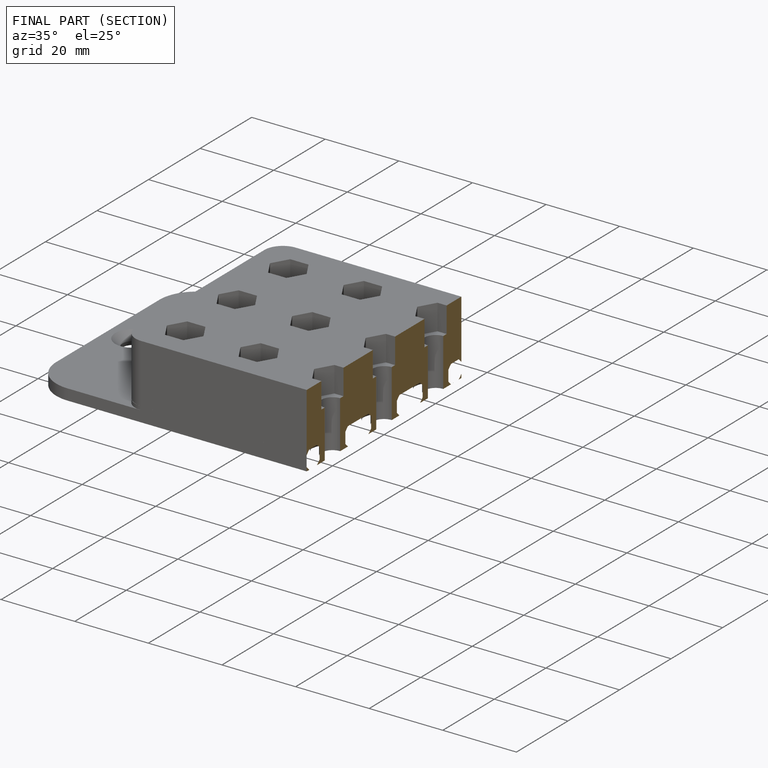
[diagram: finished part — half-section view (interior)]
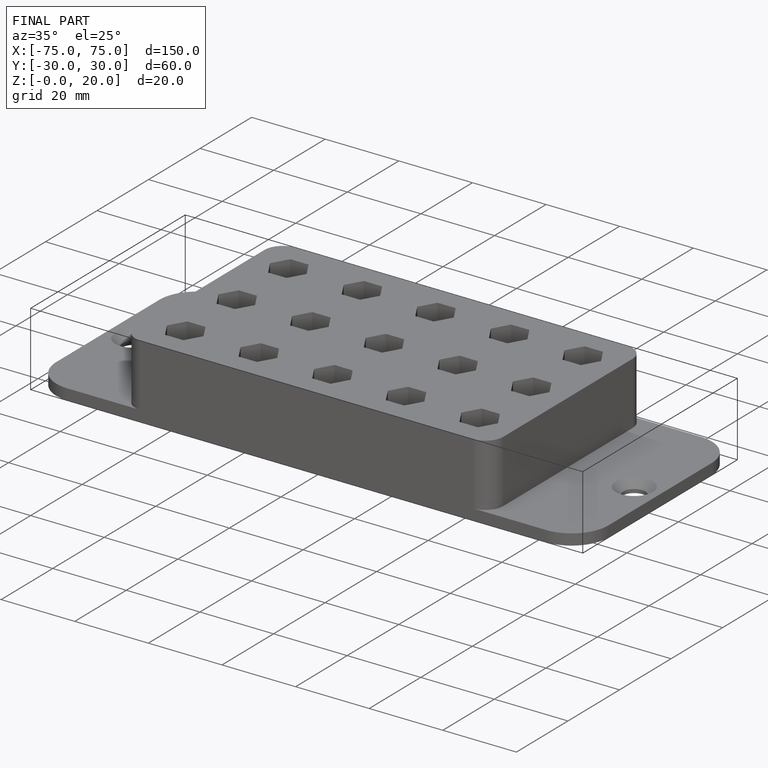
[diagram: finished part — iso view with bounding-box wireframe]
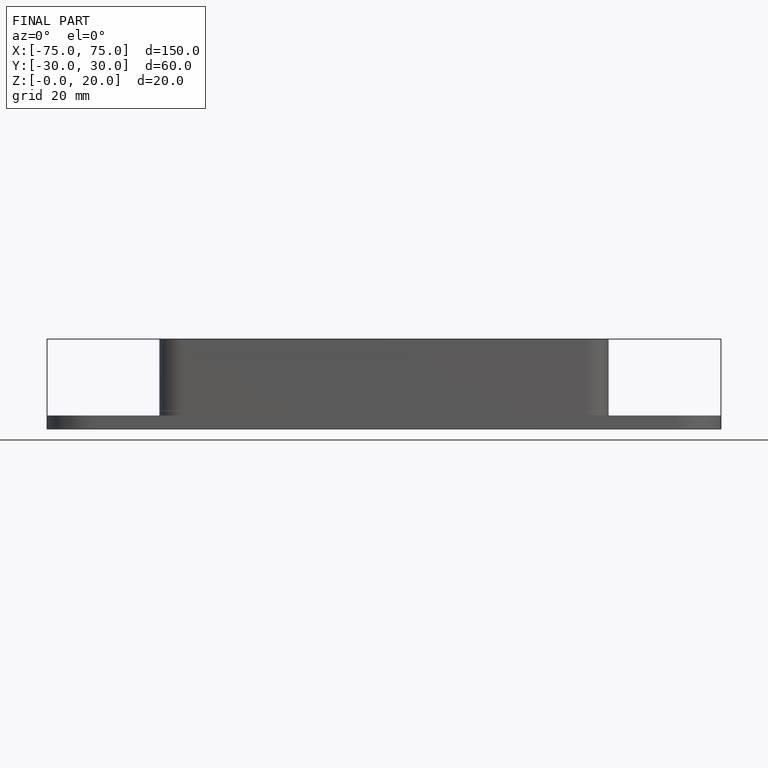
[diagram: finished part — front view with bounding-box wireframe]
